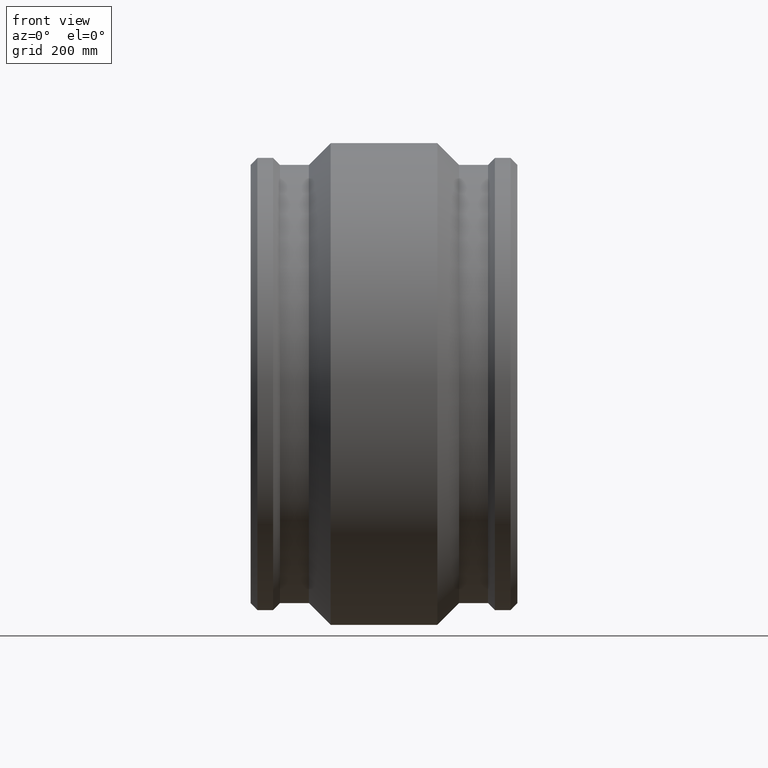
[diagram: clean part render]
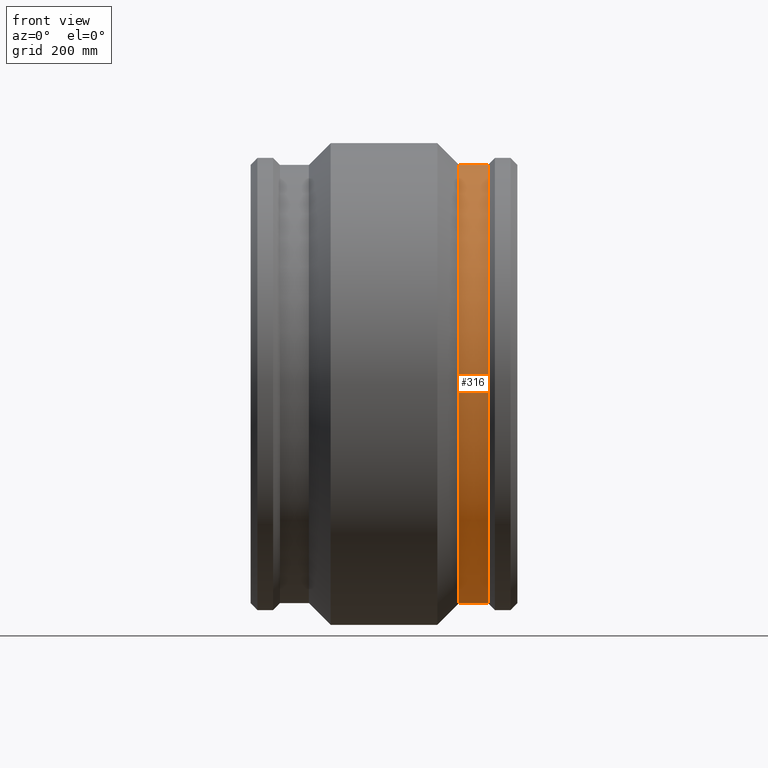
[diagram: same view with one face highlighted and labeled with its STEP entity id]
A machine part, front view. The second image highlights one B-rep face of the part: STEP entity #316.
In plain terms, the highlighted cylindrical surface (bore or boss wall) has radius 388 mm, axis along (1, 0, 0).
Its self-contained STEP definition (entity closure, byte-faithful):
#44=FACE_BOUND('',#134,.T.);
#61=CYLINDRICAL_SURFACE('',#369,388.);
#86=FACE_OUTER_BOUND('',#133,.T.);
#133=EDGE_LOOP('',(#275));
#134=EDGE_LOOP('',(#276));
#165=CIRCLE('',#368,388.);
#166=CIRCLE('',#370,388.);
#191=VERTEX_POINT('',#629);
#192=VERTEX_POINT('',#632);
#221=EDGE_CURVE('',#191,#191,#165,.T.);
#222=EDGE_CURVE('',#192,#192,#166,.T.);
#275=ORIENTED_EDGE('',*,*,#221,.T.);
#276=ORIENTED_EDGE('',*,*,#222,.F.);
#316=ADVANCED_FACE('',(#86,#44),#61,.T.);
#368=AXIS2_PLACEMENT_3D('',#630,#469,#470);
#369=AXIS2_PLACEMENT_3D('',#631,#471,#472);
#370=AXIS2_PLACEMENT_3D('',#633,#473,#474);
#469=DIRECTION('center_axis',(1.,1.83697019872103E-16,0.));
#470=DIRECTION('ref_axis',(0.,0.,-1.));
#471=DIRECTION('center_axis',(1.,1.83697019872103E-16,0.));
#472=DIRECTION('ref_axis',(-2.00152883312704E-16,1.,0.));
#473=DIRECTION('center_axis',(1.,1.83697019872103E-16,0.));
#474=DIRECTION('ref_axis',(0.,0.,-1.));
#629=CARTESIAN_POINT('',(132.9,388.,0.));
#630=CARTESIAN_POINT('Origin',(132.9,6.77658306308188E-14,0.));
#631=CARTESIAN_POINT('Origin',(158.49,7.24666373693459E-14,0.));
#632=CARTESIAN_POINT('',(184.08,388.,0.));
#633=CARTESIAN_POINT('Origin',(184.08,7.7167444107873E-14,0.));